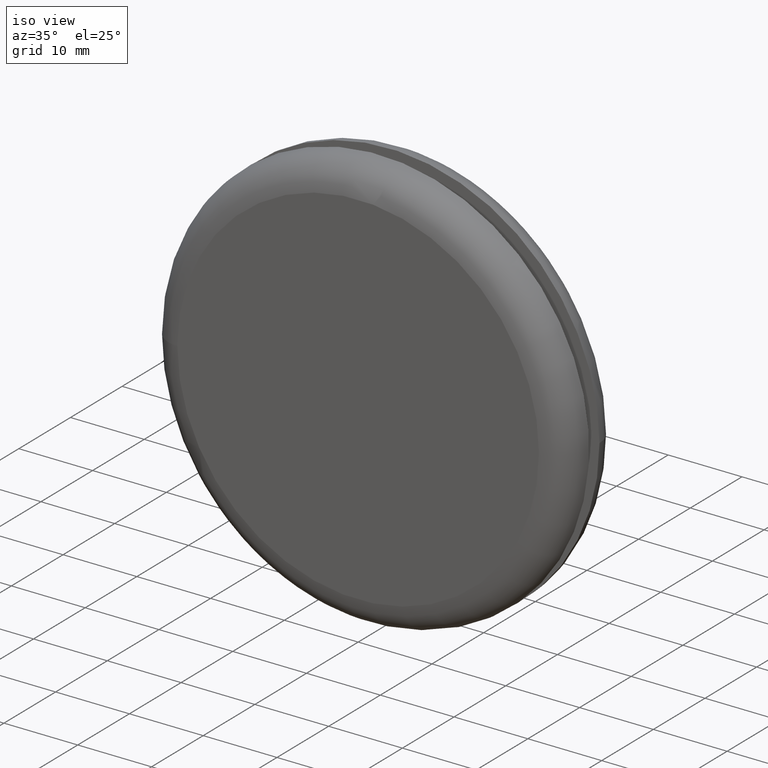
[diagram: clean part render]
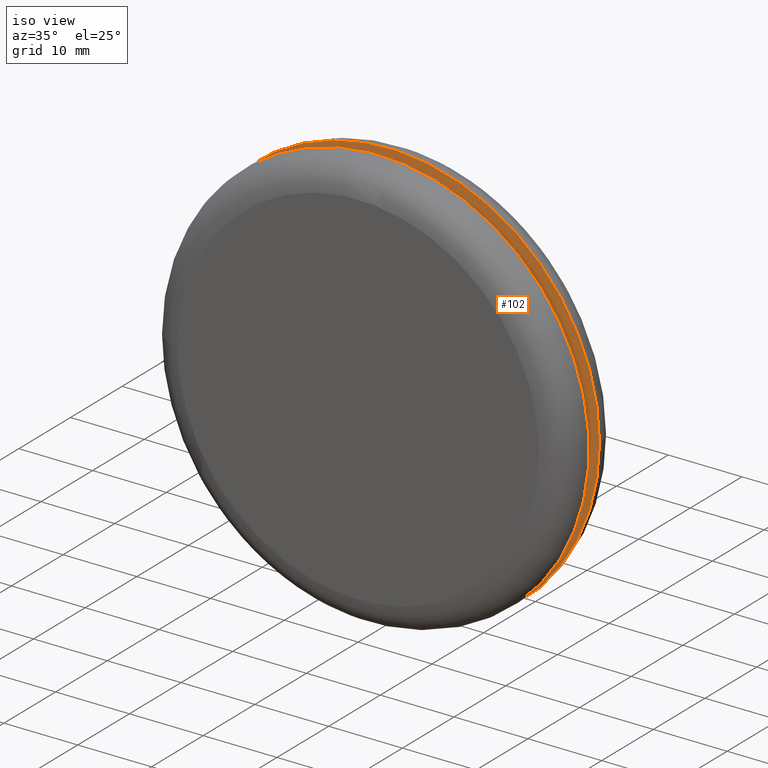
[diagram: same view with one face highlighted and labeled with its STEP entity id]
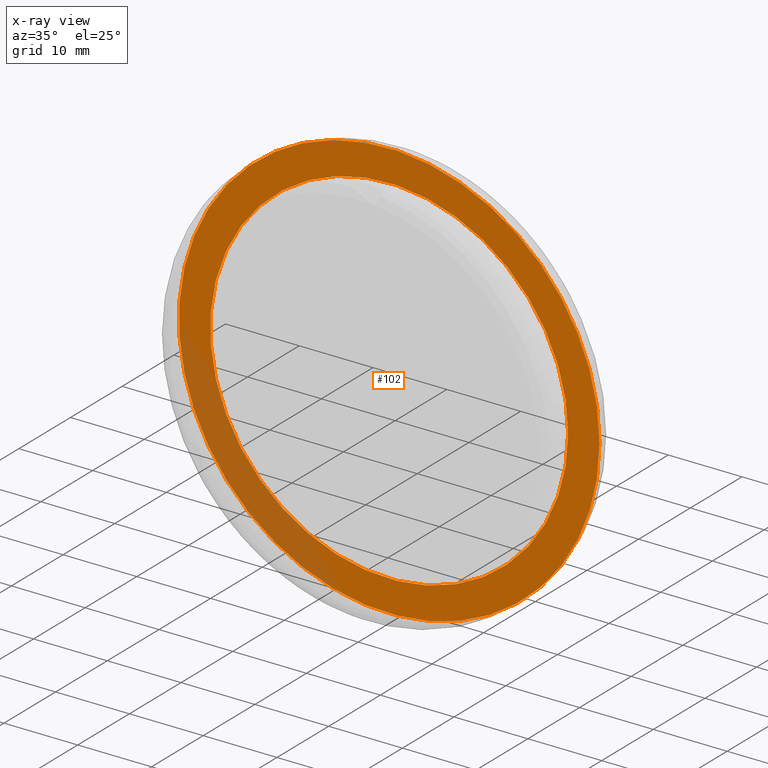
[diagram: x-ray of the same camera — body ghosted, the highlighted face saturated]
A machine part, iso view. The second image highlights one B-rep face of the part: STEP entity #102.
The next image is the same camera in x-ray: the body ghosted, the highlighted face saturated — about 18% of this face is hidden behind the body in this view.
In plain terms, the highlighted planar face has unit normal (0, 1, 0).
Its self-contained STEP definition (entity closure, byte-faithful):
#20=PLANE('',#119);
#26=FACE_BOUND('',#49,.T.);
#35=FACE_OUTER_BOUND('',#48,.T.);
#48=EDGE_LOOP('',(#88));
#49=EDGE_LOOP('',(#89));
#58=CIRCLE('',#116,28.5);
#60=CIRCLE('',#120,24.25);
#66=VERTEX_POINT('',#174);
#68=VERTEX_POINT('',#180);
#74=EDGE_CURVE('',#66,#66,#58,.T.);
#76=EDGE_CURVE('',#68,#68,#60,.T.);
#88=ORIENTED_EDGE('',*,*,#74,.F.);
#89=ORIENTED_EDGE('',*,*,#76,.T.);
#102=ADVANCED_FACE('',(#35,#26),#20,.F.);
#116=AXIS2_PLACEMENT_3D('',#175,#144,#145);
#119=AXIS2_PLACEMENT_3D('',#179,#150,#151);
#120=AXIS2_PLACEMENT_3D('',#181,#152,#153);
#144=DIRECTION('center_axis',(0.,1.,0.));
#145=DIRECTION('ref_axis',(1.,0.,0.));
#150=DIRECTION('center_axis',(0.,1.,0.));
#151=DIRECTION('ref_axis',(0.,0.,1.));
#152=DIRECTION('center_axis',(0.,1.,0.));
#153=DIRECTION('ref_axis',(1.,0.,0.));
#174=CARTESIAN_POINT('',(28.5,6.,0.));
#175=CARTESIAN_POINT('Origin',(0.,6.,0.));
#179=CARTESIAN_POINT('Origin',(-2.36846395327732E-15,6.,1.03880516923991E-15));
#180=CARTESIAN_POINT('',(24.25,6.,0.));
#181=CARTESIAN_POINT('Origin',(0.,6.,0.));